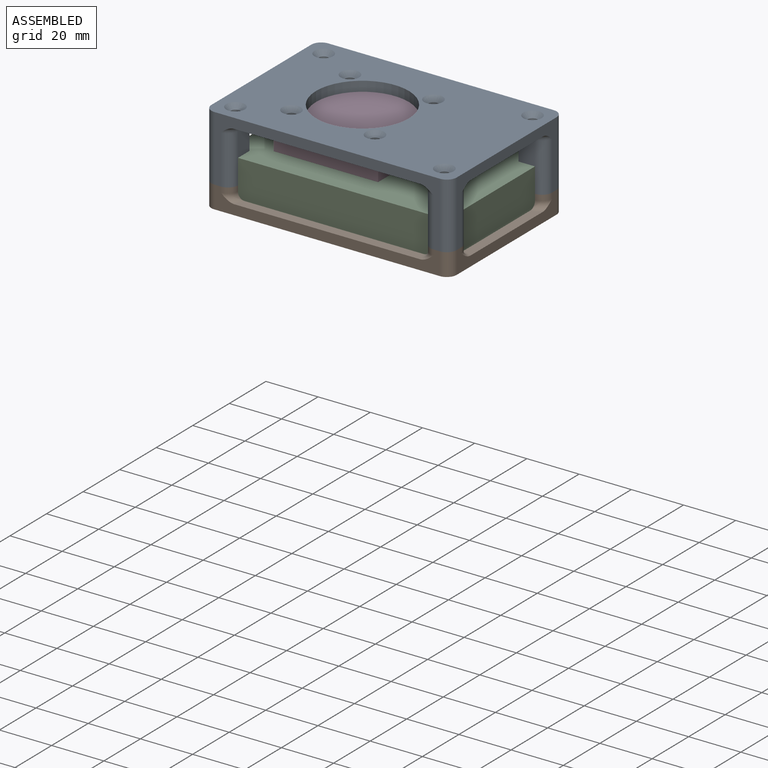
[diagram: assembled view]
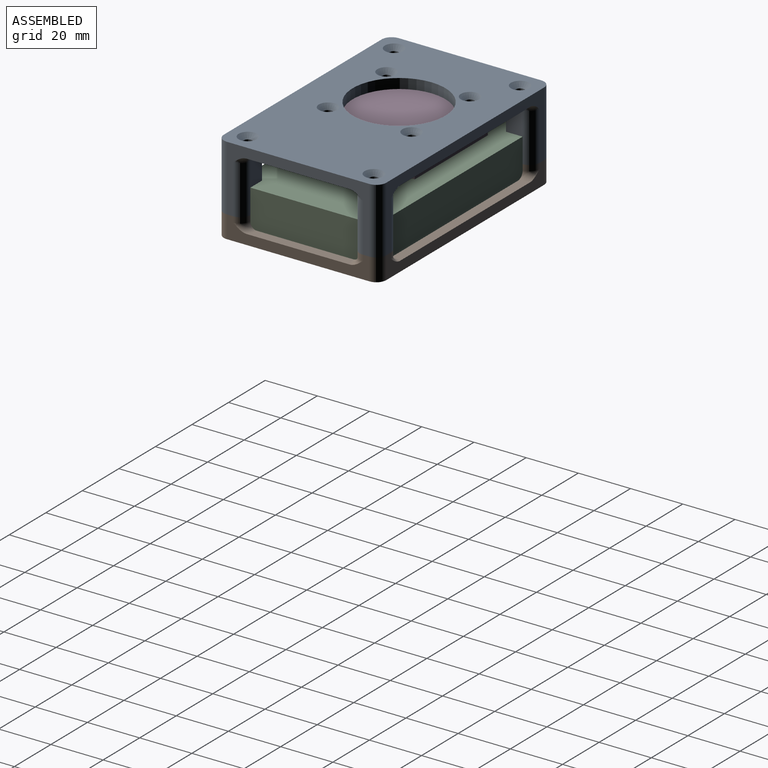
[diagram: assembled view, second angle]
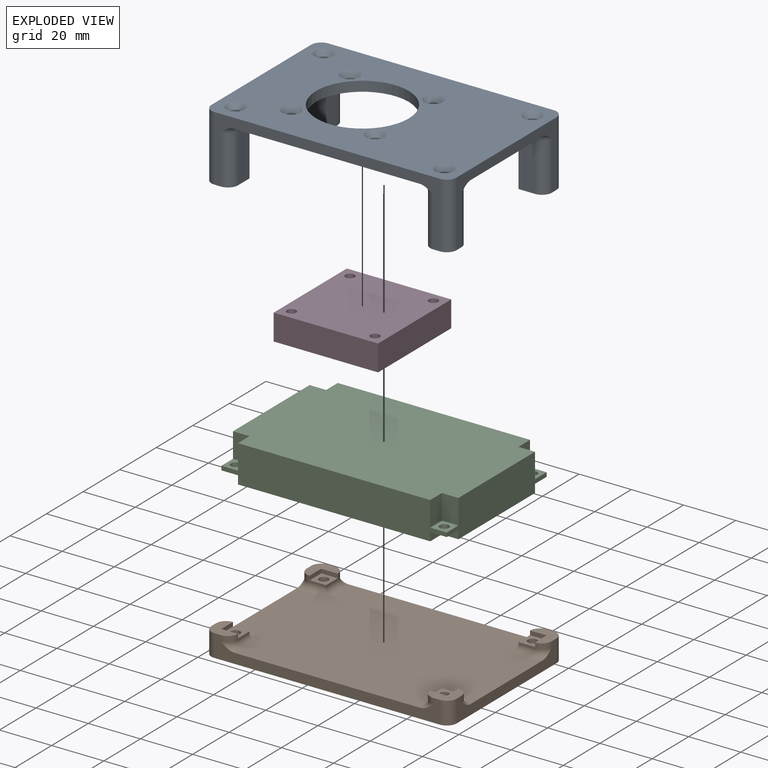
[diagram: exploded view]
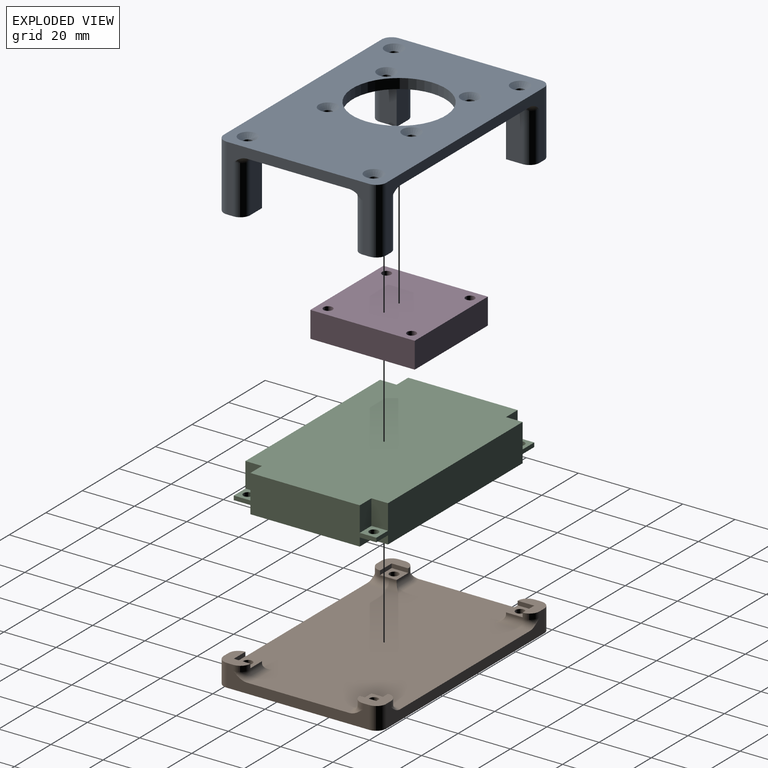
[diagram: exploded view, second angle]
ASSEMBLY  parts=4 mates=6
PART A: 63 faces, bbox 104x72.3x25.1 mm
  f0: plane 93.98x62.23mm, normal (0,0,-1), area 4183.3mm2, adj f2,f4,f6,f8,f34,f35,f36,f37
  f1: plane 93.98x62.23mm, normal (0,0,1), area 4525.4mm2, adj f2,f3,f4,f5,f6,f7,f8,f12
  f2: plane 54.61x25.15mm, normal (-1,0,0), area 325.7mm2, adj f0,f1,f3,f12,f15,f18,f21,f23
  f3: cylinder r=3.81mm len=25.15mm, axis (0,0,-1), area 150.5mm2, adj f1,f2,f4,f18
  f4: plane 86.36x25.15mm, normal (0,-1,0), area 446.6mm2, adj f0,f1,f3,f5,f16,f18,f25,f28
  f5: cylinder r=3.81mm len=25.15mm, axis (0,0,-1), area 150.5mm2, adj f1,f4,f6,f28
  f6: plane 54.61x25.15mm, normal (1,0,0), area 325.7mm2, adj f0,f1,f5,f7,f26,f28,f32,f33
  f7: cylinder r=3.81mm len=25.15mm, axis (0,0,-1), area 150.5mm2, adj f1,f6,f8,f33
  f8: plane 86.36x25.15mm, normal (0,1,0), area 446.6mm2, adj f0,f1,f7,f12,f20,f23,f29,f33
  f9: cylinder r=1.75mm len=23.35mm, axis (0,0,-1), area 256.7mm2, adj f28,f39
  f10: cylinder r=1.75mm len=23.35mm, axis (0,0,-1), area 256.7mm2, adj f33,f40
  f11: cylinder r=1.75mm len=23.35mm, axis (0,0,-1), area 256.7mm2, adj f23,f43
  f12: cylinder r=3.81mm len=25.15mm, axis (0,0,-1), area 150.5mm2, adj f1,f2,f8,f23
  f13: cylinder r=1.75mm len=23.35mm, axis (0,0,-1), area 256.7mm2, adj f18,f46
  f14: plane 18.8x6.35mm, normal (0,1,0), area 119.4mm2, adj f15,f17,f18,f56
  f15: cylinder r=3.81mm len=18.8mm, axis (0,0,1), area 112.5mm2, adj f2,f14,f18,f55
  f16: cylinder r=3.81mm len=18.8mm, axis (0,0,1), area 112.5mm2, adj f4,f17,f18,f58
  f17: plane 18.8x6.35mm, normal (1,0,0), area 119.4mm2, adj f14,f16,f18,f57
  f18: plane 10.16x10.16mm, normal (0,0,-1), area 84.3mm2, adj f2,f3,f4,f13,f14,f15,f16,f17
  f19: plane 18.8x6.35mm, normal (1,0,0), area 119.4mm2, adj f20,f22,f23,f60
  f20: cylinder r=3.81mm len=18.8mm, axis (0,0,1), area 112.5mm2, adj f8,f19,f23,f59
  f21: cylinder r=3.81mm len=18.8mm, axis (0,0,1), area 112.5mm2, adj f2,f22,f23,f62
  f22: plane 18.8x6.35mm, normal (0,-1,0), area 119.4mm2, adj f19,f21,f23,f61
  f23: plane 10.16x10.16mm, normal (0,0,-1), area 84.3mm2, adj f2,f8,f11,f12,f19,f20,f21,f22
  f24: plane 18.8x6.35mm, normal (-1,0,0), area 119.4mm2, adj f25,f27,f28,f52
  f25: cylinder r=3.81mm len=18.8mm, axis (0,0,1), area 112.5mm2, adj f4,f24,f28,f51
  f26: cylinder r=3.81mm len=18.8mm, axis (0,0,1), area 112.5mm2, adj f6,f27,f28,f54
  f27: plane 18.8x6.35mm, normal (0,1,0), area 119.4mm2, adj f24,f26,f28,f53
  f28: plane 10.16x10.16mm, normal (0,0,-1), area 84.3mm2, adj f4,f5,f6,f9,f24,f25,f26,f27
  f29: cylinder r=3.81mm len=18.8mm, axis (0,0,1), area 112.5mm2, adj f8,f30,f33,f49
  f30: plane 18.8x6.35mm, normal (-1,0,0), area 119.4mm2, adj f29,f31,f33,f50
  f31: plane 18.8x6.35mm, normal (0,-1,0), area 119.4mm2, adj f30,f32,f33,f48
  f32: cylinder r=3.81mm len=18.8mm, axis (0,0,1), area 112.5mm2, adj f6,f31,f33,f47
  f33: plane 10.16x10.16mm, normal (0,0,-1), area 84.3mm2, adj f6,f7,f8,f10,f29,f30,f31,f32
  f34: cylinder r=1.75mm len=3.5mm, axis (0,0,-1), area 22.1mm2, adj f0,f45
  f35: cylinder r=1.75mm len=3.5mm, axis (0,0,-1), area 22.1mm2, adj f0,f44
  f36: cylinder r=17.79mm len=35.57mm, axis (0,0,-1), area 425.8mm2, adj f0,f1
  f37: cylinder r=1.75mm len=3.5mm, axis (0,0,-1), area 22.1mm2, adj f0,f42
  f38: cylinder r=1.75mm len=3.5mm, axis (0,0,-1), area 22.1mm2, adj f0,f41
  f39: cone r=3.55mm half-angle=45deg, axis (0,0,1), area 42.4mm2, adj f1,f9
  f40: cone r=1.75mm half-angle=45deg, axis (0,0,1), area 42.4mm2, adj f1,f10
  f41: cone r=3.55mm half-angle=45deg, axis (0,0,1), area 42.4mm2, adj f1,f38
  f42: cone r=1.75mm half-angle=45deg, axis (0,0,1), area 42.4mm2, adj f1,f37
  f43: cone r=3.55mm half-angle=45deg, axis (0,0,1), area 42.4mm2, adj f1,f11
  f44: cone r=3.55mm half-angle=45deg, axis (0,0,1), area 42.4mm2, adj f1,f35
  f45: cone r=1.75mm half-angle=45deg, axis (0,0,1), area 42.4mm2, adj f1,f34
  f46: cone r=1.75mm half-angle=45deg, axis (0,0,1), area 42.4mm2, adj f1,f13
  f47: torus R=6.35mm, axis (0,0,1), area 18.7mm2, adj f0,f6,f32,f48
  f48: cylinder r=2.54mm len=8.89mm, axis (1,0,0), area 29mm2, adj f0,f31,f47,f50
  f49: torus R=6.35mm, axis (0,0,1), area 18.7mm2, adj f0,f8,f29,f50
  f50: cylinder r=2.54mm len=8.89mm, axis (0,-1,0), area 29mm2, adj f0,f30,f48,f49
  f51: torus R=6.35mm, axis (0,0,1), area 18.7mm2, adj f0,f4,f25,f52
  f52: cylinder r=2.54mm len=8.89mm, axis (0,-1,0), area 29mm2, adj f0,f24,f51,f53
  f53: cylinder r=2.54mm len=8.89mm, axis (-1,0,0), area 29mm2, adj f0,f27,f52,f54
  f54: torus R=6.35mm, axis (0,0,1), area 18.7mm2, adj f0,f6,f26,f53
  f55: torus R=6.35mm, axis (0,0,1), area 18.7mm2, adj f0,f2,f15,f56
  f56: cylinder r=2.54mm len=8.89mm, axis (-1,0,0), area 29mm2, adj f0,f14,f55,f57
  f57: cylinder r=2.54mm len=8.89mm, axis (0,1,0), area 29mm2, adj f0,f17,f56,f58
  f58: torus R=6.35mm, axis (0,0,1), area 18.7mm2, adj f0,f4,f16,f57
  f59: torus R=6.35mm, axis (0,0,1), area 18.7mm2, adj f0,f8,f20,f60
  f60: cylinder r=2.54mm len=8.89mm, axis (0,1,0), area 29mm2, adj f0,f19,f59,f61
  f61: cylinder r=2.54mm len=8.89mm, axis (1,0,0), area 29mm2, adj f0,f22,f60,f62
  f62: torus R=6.35mm, axis (0,0,1), area 18.7mm2, adj f0,f2,f21,f61
PART B: 90 faces, bbox 104x72.3x8.6 mm
  f0: cylinder r=1.75mm len=3.99mm, axis (0,0,1), area 43.8mm2, adj f42,f59
  f1: cylinder r=1.75mm len=3.99mm, axis (0,0,1), area 43.8mm2, adj f45,f66
  f2: cylinder r=1.75mm len=3.99mm, axis (0,0,1), area 43.8mm2, adj f39,f73
  f3: cylinder r=1.75mm len=3.99mm, axis (0,0,1), area 43.8mm2, adj f36,f52
  f4: plane 93.98x62.23mm, normal (0,0,-1), area 5711.2mm2, adj f6,f7,f8,f9,f10,f11,f12,f13
  f5: plane 93.98x62.23mm, normal (0,0,1), area 5215.6mm2, adj f7,f9,f11,f13,f74,f75,f76,f77
  f6: cylinder r=3.81mm len=8.57mm, axis (0,0,1), area 51.3mm2, adj f4,f7,f13,f23
  f7: plane 54.61x8.57mm, normal (-1,0,0), area 241.5mm2, adj f4,f5,f6,f8,f15,f18,f20,f23
  f8: cylinder r=3.81mm len=8.57mm, axis (0,0,1), area 51.3mm2, adj f4,f7,f9,f18
  f9: plane 86.36x8.57mm, normal (0,-1,0), area 362.4mm2, adj f4,f5,f8,f10,f16,f18,f24,f28
  f10: cylinder r=3.81mm len=8.57mm, axis (0,0,1), area 51.3mm2, adj f4,f9,f11,f28
  f11: plane 54.61x8.57mm, normal (1,0,0), area 241.5mm2, adj f4,f5,f10,f12,f25,f28,f31,f33
  f12: cylinder r=3.81mm len=8.57mm, axis (0,0,1), area 51.3mm2, adj f4,f11,f13,f33
  f13: plane 86.36x8.57mm, normal (0,1,0), area 362.4mm2, adj f4,f5,f6,f12,f19,f23,f32,f33
  f14: plane 6.35x1.59mm, normal (1,0,0), area 10.1mm2, adj f15,f17,f18,f36
  f15: cylinder r=3.81mm len=3.81mm, axis (0,0,-1), area 13.3mm2, adj f7,f14,f18,f35,f88
  f16: cylinder r=3.81mm len=3.81mm, axis (0,0,-1), area 13.3mm2, adj f9,f17,f18,f34,f86
  f17: plane 6.35x1.59mm, normal (0,1,0), area 10.1mm2, adj f14,f16,f18,f36
  f18: plane 10.16x10.16mm, normal (0,0,1), area 53.6mm2, adj f7,f8,f9,f14,f15,f16,f17
  f19: cylinder r=3.81mm len=3.81mm, axis (0,0,-1), area 13.3mm2, adj f13,f22,f23,f38,f84
  f20: cylinder r=3.81mm len=3.81mm, axis (0,0,-1), area 13.3mm2, adj f7,f21,f23,f37,f82
  f21: plane 6.35x1.59mm, normal (1,0,0), area 10.1mm2, adj f20,f22,f23,f39
  f22: plane 6.35x1.59mm, normal (0,-1,0), area 10.1mm2, adj f19,f21,f23,f39
  f23: plane 10.16x10.16mm, normal (0,0,1), area 53.6mm2, adj f6,f7,f13,f19,f20,f21,f22
  f24: cylinder r=3.81mm len=3.81mm, axis (0,0,-1), area 13.3mm2, adj f9,f27,f28,f41,f76
  f25: cylinder r=3.81mm len=3.81mm, axis (0,0,-1), area 13.3mm2, adj f11,f26,f28,f40,f74
  f26: plane 6.35x1.59mm, normal (-1,0,0), area 10.1mm2, adj f25,f27,f28,f42
  f27: plane 6.35x1.59mm, normal (0,1,0), area 10.1mm2, adj f24,f26,f28,f42
  f28: plane 10.16x10.16mm, normal (0,0,1), area 53.6mm2, adj f9,f10,f11,f24,f25,f26,f27
  f29: plane 6.35x1.59mm, normal (0,-1,0), area 10.1mm2, adj f30,f32,f33,f45
  f30: plane 6.35x1.59mm, normal (-1,0,0), area 10.1mm2, adj f29,f31,f33,f45
  f31: cylinder r=3.81mm len=3.81mm, axis (0,0,-1), area 13.3mm2, adj f11,f30,f33,f44,f78
  f32: cylinder r=3.81mm len=3.81mm, axis (0,0,-1), area 13.3mm2, adj f13,f29,f33,f43,f80
  f33: plane 10.16x10.16mm, normal (0,0,1), area 53.6mm2, adj f11,f12,f13,f29,f30,f31,f32
  f34: plane 6.35x0.64mm, normal (1,0,0), area 4mm2, adj f16,f35,f36,f87
  f35: plane 6.35x0.64mm, normal (0,1,0), area 4mm2, adj f15,f34,f36,f89
  f36: plane 6.35x6.35mm, normal (0,0,1), area 30.7mm2, adj f3,f14,f17,f34,f35
  f37: plane 6.35x0.64mm, normal (0,-1,0), area 4mm2, adj f20,f38,f39,f83
  f38: plane 6.35x0.64mm, normal (1,0,0), area 4mm2, adj f19,f37,f39,f85
  f39: plane 6.35x6.35mm, normal (0,0,1), area 30.7mm2, adj f2,f21,f22,f37,f38
  f40: plane 6.35x0.64mm, normal (0,1,0), area 4mm2, adj f25,f41,f42,f75
  f41: plane 6.35x0.64mm, normal (-1,0,0), area 4mm2, adj f24,f40,f42,f77
  f42: plane 6.35x6.35mm, normal (0,0,1), area 30.7mm2, adj f0,f26,f27,f40,f41
  f43: plane 6.35x0.64mm, normal (-1,0,0), area 4mm2, adj f32,f44,f45,f81
  f44: plane 6.35x0.64mm, normal (0,-1,0), area 4mm2, adj f31,f43,f45,f79
  f45: plane 6.35x6.35mm, normal (0,0,1), area 30.7mm2, adj f1,f29,f30,f43,f44
  f46: plane 3x3mm, normal (-0.5,0.87,0), area 10.4mm2, adj f4,f47,f51,f52
  f47: plane 3x3mm, normal (0.5,0.87,0), area 10.4mm2, adj f4,f46,f48,f52
  f48: plane 3.46x3mm, normal (1,0,0), area 10.4mm2, adj f4,f47,f49,f52
  f49: plane 3x3mm, normal (0.5,-0.87,0), area 10.4mm2, adj f4,f48,f50,f52
  f50: plane 3x3mm, normal (-0.5,-0.87,0), area 10.4mm2, adj f4,f49,f51,f52
  f51: plane 3.46x3mm, normal (-1,0,0), area 10.4mm2, adj f4,f46,f50,f52
  f52: plane 6.93x6mm, normal (0,0,-1), area 21.6mm2, adj f3,f46,f47,f48,f49,f50,f51
  f53: plane 3x3mm, normal (-0.5,0.87,0), area 10.4mm2, adj f4,f54,f58,f59
  f54: plane 3x3mm, normal (0.5,0.87,0), area 10.4mm2, adj f4,f53,f55,f59
  f55: plane 3.46x3mm, normal (1,0,0), area 10.4mm2, adj f4,f54,f56,f59
  f56: plane 3x3mm, normal (0.5,-0.87,0), area 10.4mm2, adj f4,f55,f57,f59
  f57: plane 3x3mm, normal (-0.5,-0.87,0), area 10.4mm2, adj f4,f56,f58,f59
  f58: plane 3.46x3mm, normal (-1,0,0), area 10.4mm2, adj f4,f53,f57,f59
  f59: plane 6.93x6mm, normal (0,0,-1), area 21.6mm2, adj f0,f53,f54,f55,f56,f57,f58
  f60: plane 3x3mm, normal (-0.5,-0.87,0), area 10.4mm2, adj f4,f61,f65,f66
  f61: plane 3.46x3mm, normal (-1,0,0), area 10.4mm2, adj f4,f60,f62,f66
  f62: plane 3x3mm, normal (-0.5,0.87,0), area 10.4mm2, adj f4,f61,f63,f66
  f63: plane 3x3mm, normal (0.5,0.87,0), area 10.4mm2, adj f4,f62,f64,f66
  f64: plane 3.46x3mm, normal (1,0,0), area 10.4mm2, adj f4,f63,f65,f66
  f65: plane 3x3mm, normal (0.5,-0.87,0), area 10.4mm2, adj f4,f60,f64,f66
  f66: plane 6.93x6mm, normal (0,0,-1), area 21.6mm2, adj f1,f60,f61,f62,f63,f64,f65
  f67: plane 3.46x3mm, normal (1,0,0), area 10.4mm2, adj f4,f68,f72,f73
  f68: plane 3x3mm, normal (0.5,-0.87,0), area 10.4mm2, adj f4,f67,f69,f73
  f69: plane 3x3mm, normal (-0.5,-0.87,0), area 10.4mm2, adj f4,f68,f70,f73
  f70: plane 3.46x3mm, normal (-1,0,0), area 10.4mm2, adj f4,f69,f71,f73
  f71: plane 3x3mm, normal (-0.5,0.87,0), area 10.4mm2, adj f4,f70,f72,f73
  f72: plane 3x3mm, normal (0.5,0.87,0), area 10.4mm2, adj f4,f67,f71,f73
  f73: plane 6.93x6mm, normal (0,0,-1), area 21.6mm2, adj f2,f67,f68,f69,f70,f71,f72
  f74: torus R=6.35mm, axis (0,0,1), area 18.7mm2, adj f5,f11,f25,f75
  f75: cylinder r=2.54mm len=8.89mm, axis (-1,0,0), area 29mm2, adj f5,f40,f74,f77
  f76: torus R=6.35mm, axis (0,0,1), area 18.7mm2, adj f5,f9,f24,f77
  f77: cylinder r=2.54mm len=8.89mm, axis (0,-1,0), area 29mm2, adj f5,f41,f75,f76
  f78: torus R=6.35mm, axis (0,0,1), area 18.7mm2, adj f5,f11,f31,f79
  f79: cylinder r=2.54mm len=8.89mm, axis (1,0,0), area 29mm2, adj f5,f44,f78,f81
  f80: torus R=6.35mm, axis (0,0,1), area 18.7mm2, adj f5,f13,f32,f81
  f81: cylinder r=2.54mm len=8.89mm, axis (0,-1,0), area 29mm2, adj f5,f43,f79,f80
  f82: torus R=6.35mm, axis (0,0,1), area 18.7mm2, adj f5,f7,f20,f83
  f83: cylinder r=2.54mm len=8.89mm, axis (1,0,0), area 29mm2, adj f5,f37,f82,f85
  f84: torus R=6.35mm, axis (0,0,1), area 18.7mm2, adj f5,f13,f19,f85
  f85: cylinder r=2.54mm len=8.89mm, axis (0,1,0), area 29mm2, adj f5,f38,f83,f84
  f86: torus R=6.35mm, axis (0,0,1), area 18.7mm2, adj f5,f9,f16,f87
  f87: cylinder r=2.54mm len=8.89mm, axis (0,1,0), area 29mm2, adj f5,f34,f86,f89
  f88: torus R=6.35mm, axis (0,0,1), area 18.7mm2, adj f5,f7,f15,f89
  f89: cylinder r=2.54mm len=8.89mm, axis (-1,0,0), area 29mm2, adj f5,f35,f87,f88
PART C: 34 faces, bbox 86.4x54.6x14.3 mm
  f0: plane 6.35x6.35mm, normal (0,0,-1), area 30.7mm2, adj f6,f7,f12,f27,f28
  f1: plane 6.35x6.35mm, normal (0,0,-1), area 30.7mm2, adj f6,f9,f10,f25,f26
  f2: plane 6.35x6.35mm, normal (0,0,-1), area 30.7mm2, adj f8,f10,f13,f31,f32
  f3: plane 6.35x6.35mm, normal (0,0,1), area 30.7mm2, adj f7,f8,f11,f18,f19
  f4: plane 6.35x6.35mm, normal (0,0,1), area 30.7mm2, adj f6,f7,f12,f16,f17
  f5: plane 6.35x6.35mm, normal (0,0,1), area 30.7mm2, adj f6,f9,f10,f22,f23
  f6: plane 86.36x14.29mm, normal (0,1,0), area 1072.6mm2, adj f0,f1,f4,f5,f7,f10,f16,f23
  f7: plane 54.61x14.29mm, normal (-1,0,0), area 619mm2, adj f0,f3,f4,f6,f8,f15,f17,f18
  f8: plane 86.36x14.29mm, normal (0,-1,0), area 1072.6mm2, adj f2,f3,f7,f10,f14,f15,f19,f20
  f9: cylinder r=1.75mm len=3.5mm, axis (0,0,-1), area 17.5mm2, adj f1,f5
  f10: plane 54.61x14.29mm, normal (1,0,0), area 619mm2, adj f1,f2,f5,f6,f8,f14,f21,f22
  f11: cylinder r=1.75mm len=3.5mm, axis (0,0,-1), area 17.5mm2, adj f3,f15
  f12: cylinder r=1.75mm len=3.5mm, axis (0,0,-1), area 17.5mm2, adj f0,f4
  f13: cylinder r=1.75mm len=3.5mm, axis (0,0,-1), area 17.5mm2, adj f2,f14
  f14: plane 6.35x6.35mm, normal (0,0,1), area 30.7mm2, adj f8,f10,f13,f20,f21
  f15: plane 6.35x6.35mm, normal (0,0,-1), area 30.7mm2, adj f7,f8,f11,f29,f30
  f16: plane 9.53x6.35mm, normal (-1,0,0), area 60.5mm2, adj f4,f6,f17,f24
  f17: plane 9.53x6.35mm, normal (0,1,0), area 60.5mm2, adj f4,f7,f16,f24
  f18: plane 9.53x6.35mm, normal (0,-1,0), area 60.5mm2, adj f3,f7,f19,f24
  f19: plane 9.53x6.35mm, normal (-1,0,0), area 60.5mm2, adj f3,f8,f18,f24
  f20: plane 9.53x6.35mm, normal (1,0,0), area 60.5mm2, adj f8,f14,f21,f24
  f21: plane 9.53x6.35mm, normal (0,-1,0), area 60.5mm2, adj f10,f14,f20,f24
  f22: plane 9.53x6.35mm, normal (0,1,0), area 60.5mm2, adj f5,f10,f23,f24
  f23: plane 9.53x6.35mm, normal (1,0,0), area 60.5mm2, adj f5,f6,f22,f24
  f24: plane 86.36x54.61mm, normal (0,0,1), area 4554.8mm2, adj f6,f7,f8,f10,f16,f17,f18,f19
  f25: plane 6.35x3.18mm, normal (0,1,0), area 20.2mm2, adj f1,f10,f26,f33
  f26: plane 6.35x3.18mm, normal (1,0,0), area 20.2mm2, adj f1,f6,f25,f33
  f27: plane 6.35x3.18mm, normal (-1,0,0), area 20.2mm2, adj f0,f6,f28,f33
  f28: plane 6.35x3.18mm, normal (0,1,0), area 20.2mm2, adj f0,f7,f27,f33
  f29: plane 6.35x3.18mm, normal (0,-1,0), area 20.2mm2, adj f7,f15,f30,f33
  f30: plane 6.35x3.18mm, normal (-1,0,0), area 20.2mm2, adj f8,f15,f29,f33
  f31: plane 6.35x3.18mm, normal (1,0,0), area 20.2mm2, adj f2,f8,f32,f33
  f32: plane 6.35x3.18mm, normal (0,-1,0), area 20.2mm2, adj f2,f10,f31,f33
  f33: plane 86.36x54.61mm, normal (0,0,-1), area 4554.8mm2, adj f6,f7,f8,f10,f25,f26,f27,f28
PART D: 10 faces, bbox 40x40x10 mm
  f0: plane 40x10mm, normal (0,1,0), area 400mm2, adj f1,f4,f8,f9
  f1: plane 40x10mm, normal (-1,0,0), area 400mm2, adj f0,f2,f8,f9
  f2: plane 40x10mm, normal (0,-1,0), area 400mm2, adj f1,f4,f8,f9
  f3: cylinder r=1.75mm len=10mm, axis (0,0,-1), area 110mm2, adj f8,f9
  f4: plane 40x10mm, normal (1,0,0), area 400mm2, adj f0,f2,f8,f9
  f5: cylinder r=1.75mm len=10mm, axis (0,0,-1), area 110mm2, adj f8,f9
  f6: cylinder r=1.75mm len=10mm, axis (0,0,-1), area 110mm2, adj f8,f9
  f7: cylinder r=1.75mm len=10mm, axis (0,0,-1), area 110mm2, adj f8,f9
  f8: plane 40x40mm, normal (0,0,1), area 1561.5mm2, adj f0,f1,f2,f3,f4,f5,f6,f7
  f9: plane 40x40mm, normal (0,0,-1), area 1561.5mm2, adj f0,f1,f2,f3,f4,f5,f6,f7
PLACE A t=(-53.26,-16.76,14.73)mm
PLACE B t=(-53.26,-16.76,-11.37)mm
PLACE C t=(-53.26,-16.76,-8.19)mm
PLACE D t=(-38.33,-9.45,4.73)mm
MATE planar D.f8 <-> A.f0  axis (0,0,1) through (-18.33,10.55,14.73)mm
MATE planar A.f7 <-> B.f12  axis (0,0,-1) through (33.1,37.85,-6.61)mm
MATE cylindrical B.f1 <-> C.f9  axis (0,0,1) through (29.93,34.68,-10.19)mm
MATE cylindrical D.f6 <-> A.f35  axis (0,0,1) through (-34.33,26.55,14.73)mm
MATE planar B.f1 <-> C.f9  axis (0,0,1) through (29.93,34.68,-8.19)mm
MATE cylindrical A.f10 <-> B.f1  axis (0,0,-1) through (29.93,34.68,5.07)mm
